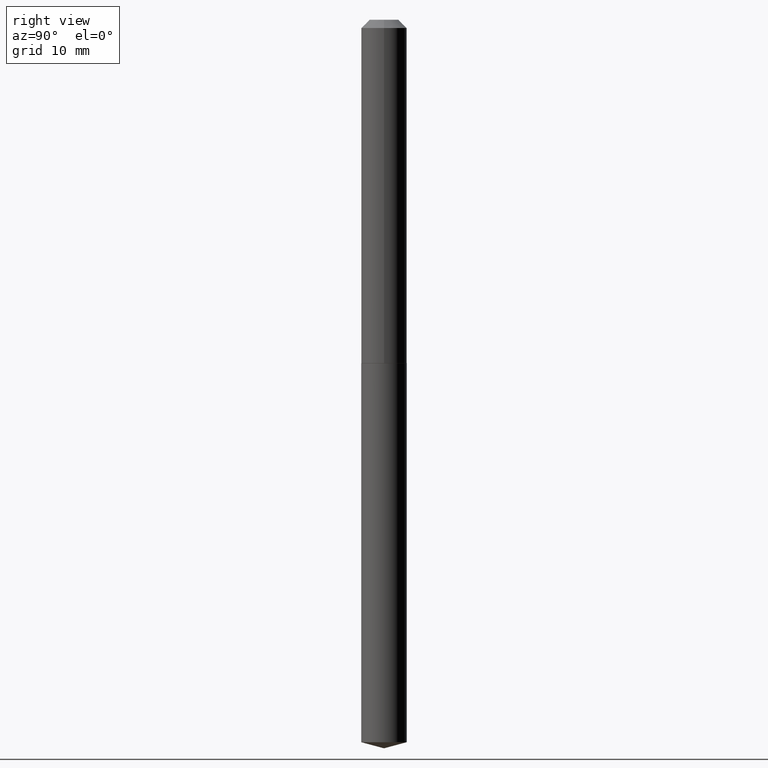
[diagram: clean part render]
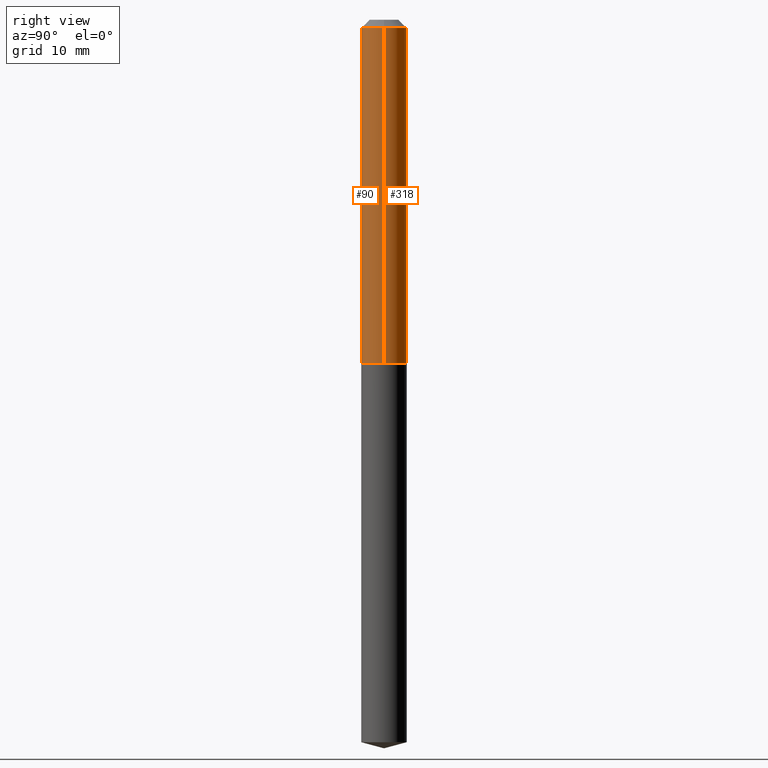
[diagram: same view with one multi-face feature highlighted, each face labeled with its STEP entity id]
A machine part, right view. The highlighted faces form ONE feature: a constant-radius fillet chain: 2 tangent blend faces with common blend radius 2.1831 mm. The faces share edges in the B-rep.
Their STEP definitions:
[1] entity #90 (Cylinder):
#29 = VERTEX_POINT ( 'NONE', #312 ) ;
#30 = VECTOR ( 'NONE', #72, 39.37007874015748143 ) ;
#31 = FACE_OUTER_BOUND ( 'NONE', #165, .T. ) ;
#39 = VERTEX_POINT ( 'NONE', #230 ) ;
#46 = EDGE_CURVE ( 'NONE', #269, #81, #368, .T. ) ;
#63 = AXIS2_PLACEMENT_3D ( 'NONE', #370, #309, #126 ) ;
#72 = DIRECTION ( 'NONE',  ( -2.445468806185136877E-29, 3.491481338843145188E-15, 1.000000000000000000 ) ) ;
#81 = VERTEX_POINT ( 'NONE', #138 ) ;
#83 = DIRECTION ( 'NONE',  ( -2.445468806185136597E-29, 3.491481338843145583E-15, 1.000000000000000000 ) ) ;
#90 = ADVANCED_FACE ( 'NONE', ( #31 ), #383, .T. ) ;
#93 = CARTESIAN_POINT ( 'NONE',  ( -0.08595000000000005413, 6.107114813858064944E-16, -4.227824710074094392E-30 ) ) ;
#94 = CARTESIAN_POINT ( 'NONE',  ( 7.642090019328600035E-31, -1.091087918388489897E-16, -0.03125000000000020123 ) ) ;
#123 = DIRECTION ( 'NONE',  ( 1.000000000000000000, -6.982962677686266711E-15, 0.000000000000000000 ) ) ;
#124 = DIRECTION ( 'NONE',  ( 1.000000000000000000, -6.982962677686266711E-15, 4.876176775795936353E-29 ) ) ;
#126 = DIRECTION ( 'NONE',  ( 1.000000000000000000, -6.982962677686262766E-15, 0.000000000000000000 ) ) ;
#138 = CARTESIAN_POINT ( 'NONE',  ( 0.08594999999999998475, -7.092944339859834254E-16, -0.03125000000000020123 ) ) ;
#143 = EDGE_CURVE ( 'NONE', #39, #29, #186, .T. ) ;
#152 = ORIENTED_EDGE ( 'NONE', *, *, #319, .T. ) ;
#165 = EDGE_LOOP ( 'NONE', ( #285, #152, #332, #234 ) ) ;
#178 = CIRCLE ( 'NONE', #268, 0.08594999999999998475 ) ;
#186 = LINE ( 'NONE', #93, #252 ) ;
#198 = CIRCLE ( 'NONE', #63, 0.08595000000000012352 ) ;
#202 = EDGE_CURVE ( 'NONE', #29, #81, #178, .T. ) ;
#203 = CARTESIAN_POINT ( 'NONE',  ( 0.000000000000000000, 0.000000000000000000, 0.000000000000000000 ) ) ;
#230 = CARTESIAN_POINT ( 'NONE',  ( -0.08595000000000012352, -3.915644926290446044E-15, -1.296399999999999775 ) ) ;
#234 = ORIENTED_EDGE ( 'NONE', *, *, #202, .F. ) ;
#252 = VECTOR ( 'NONE', #347, 39.37007874015748143 ) ;
#268 = AXIS2_PLACEMENT_3D ( 'NONE', #94, #83, #123 ) ;
#269 = VERTEX_POINT ( 'NONE', #329 ) ;
#285 = ORIENTED_EDGE ( 'NONE', *, *, #143, .F. ) ;
#287 = AXIS2_PLACEMENT_3D ( 'NONE', #203, #388, #124 ) ;
#309 = DIRECTION ( 'NONE',  ( -2.445468806185136597E-29, 3.491481338843145583E-15, 1.000000000000000000 ) ) ;
#312 = CARTESIAN_POINT ( 'NONE',  ( -0.08594999999999998475, -1.707021118371743832E-15, -0.03125000000000020123 ) ) ;
#319 = EDGE_CURVE ( 'NONE', #39, #269, #198, .T. ) ;
#329 = CARTESIAN_POINT ( 'NONE',  ( 0.08595000000000012352, -5.126542049823388540E-15, -1.296399999999999775 ) ) ;
#332 = ORIENTED_EDGE ( 'NONE', *, *, #46, .T. ) ;
#337 = CARTESIAN_POINT ( 'NONE',  ( 0.08595000000000005413, -6.001856421471350150E-16, 4.191073938796610043E-30 ) ) ;
#347 = DIRECTION ( 'NONE',  ( -2.445468806185136877E-29, 3.491481338843145188E-15, 1.000000000000000000 ) ) ;
#368 = LINE ( 'NONE', #337, #30 ) ;
#370 = CARTESIAN_POINT ( 'NONE',  ( 3.170305760338410638E-29, -4.526356407676253525E-15, -1.296399999999999775 ) ) ;
#383 = CYLINDRICAL_SURFACE ( 'NONE', #287, 0.08595000000000005413 ) ;
#388 = DIRECTION ( 'NONE',  ( -2.445468806185136597E-29, 3.491481338843145583E-15, 1.000000000000000000 ) ) ;
[2] entity #318 (Cylinder):
#8 = AXIS2_PLACEMENT_3D ( 'NONE', #352, #154, #266 ) ;
#29 = VERTEX_POINT ( 'NONE', #312 ) ;
#30 = VECTOR ( 'NONE', #72, 39.37007874015748143 ) ;
#36 = DIRECTION ( 'NONE',  ( -2.445468806185136597E-29, 3.491481338843145583E-15, 1.000000000000000000 ) ) ;
#39 = VERTEX_POINT ( 'NONE', #230 ) ;
#46 = EDGE_CURVE ( 'NONE', #269, #81, #368, .T. ) ;
#56 = CIRCLE ( 'NONE', #8, 0.08595000000000012352 ) ;
#64 = ORIENTED_EDGE ( 'NONE', *, *, #300, .F. ) ;
#68 = AXIS2_PLACEMENT_3D ( 'NONE', #132, #36, #333 ) ;
#72 = DIRECTION ( 'NONE',  ( -2.445468806185136877E-29, 3.491481338843145188E-15, 1.000000000000000000 ) ) ;
#81 = VERTEX_POINT ( 'NONE', #138 ) ;
#93 = CARTESIAN_POINT ( 'NONE',  ( -0.08595000000000005413, 6.107114813858064944E-16, -4.227824710074094392E-30 ) ) ;
#108 = FACE_OUTER_BOUND ( 'NONE', #364, .T. ) ;
#110 = EDGE_CURVE ( 'NONE', #269, #39, #56, .T. ) ;
#132 = CARTESIAN_POINT ( 'NONE',  ( 7.642090019328600035E-31, -1.091087918388489897E-16, -0.03125000000000020123 ) ) ;
#138 = CARTESIAN_POINT ( 'NONE',  ( 0.08594999999999998475, -7.092944339859834254E-16, -0.03125000000000020123 ) ) ;
#143 = EDGE_CURVE ( 'NONE', #39, #29, #186, .T. ) ;
#154 = DIRECTION ( 'NONE',  ( -2.445468806185136597E-29, 3.491481338843145583E-15, 1.000000000000000000 ) ) ;
#155 = ORIENTED_EDGE ( 'NONE', *, *, #46, .F. ) ;
#159 = AXIS2_PLACEMENT_3D ( 'NONE', #162, #160, #303 ) ;
#160 = DIRECTION ( 'NONE',  ( -2.445468806185136597E-29, 3.491481338843145583E-15, 1.000000000000000000 ) ) ;
#162 = CARTESIAN_POINT ( 'NONE',  ( 0.000000000000000000, 0.000000000000000000, 0.000000000000000000 ) ) ;
#186 = LINE ( 'NONE', #93, #252 ) ;
#230 = CARTESIAN_POINT ( 'NONE',  ( -0.08595000000000012352, -3.915644926290446044E-15, -1.296399999999999775 ) ) ;
#239 = CIRCLE ( 'NONE', #68, 0.08594999999999998475 ) ;
#252 = VECTOR ( 'NONE', #347, 39.37007874015748143 ) ;
#266 = DIRECTION ( 'NONE',  ( 1.000000000000000000, -6.982962677686262766E-15, 0.000000000000000000 ) ) ;
#269 = VERTEX_POINT ( 'NONE', #329 ) ;
#276 = ORIENTED_EDGE ( 'NONE', *, *, #143, .T. ) ;
#277 = CYLINDRICAL_SURFACE ( 'NONE', #159, 0.08595000000000005413 ) ;
#299 = ORIENTED_EDGE ( 'NONE', *, *, #110, .T. ) ;
#300 = EDGE_CURVE ( 'NONE', #81, #29, #239, .T. ) ;
#303 = DIRECTION ( 'NONE',  ( 1.000000000000000000, -6.982962677686266711E-15, 4.876176775795936353E-29 ) ) ;
#312 = CARTESIAN_POINT ( 'NONE',  ( -0.08594999999999998475, -1.707021118371743832E-15, -0.03125000000000020123 ) ) ;
#318 = ADVANCED_FACE ( 'NONE', ( #108 ), #277, .T. ) ;
#329 = CARTESIAN_POINT ( 'NONE',  ( 0.08595000000000012352, -5.126542049823388540E-15, -1.296399999999999775 ) ) ;
#333 = DIRECTION ( 'NONE',  ( 1.000000000000000000, -6.982962677686266711E-15, 0.000000000000000000 ) ) ;
#337 = CARTESIAN_POINT ( 'NONE',  ( 0.08595000000000005413, -6.001856421471350150E-16, 4.191073938796610043E-30 ) ) ;
#347 = DIRECTION ( 'NONE',  ( -2.445468806185136877E-29, 3.491481338843145188E-15, 1.000000000000000000 ) ) ;
#352 = CARTESIAN_POINT ( 'NONE',  ( 3.170305760338410638E-29, -4.526356407676253525E-15, -1.296399999999999775 ) ) ;
#364 = EDGE_LOOP ( 'NONE', ( #299, #276, #64, #155 ) ) ;
#368 = LINE ( 'NONE', #337, #30 ) ;